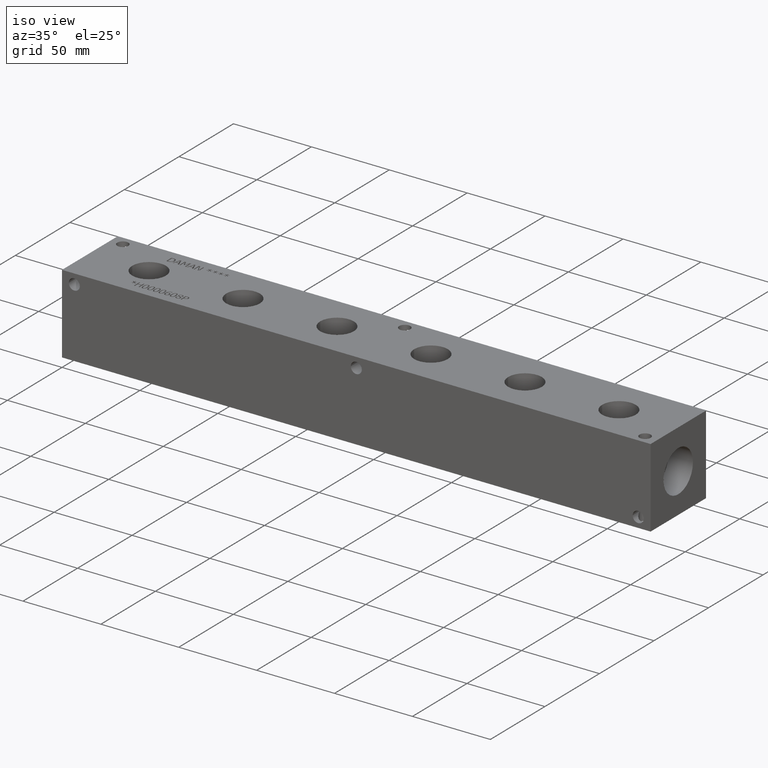
[diagram: clean part render]
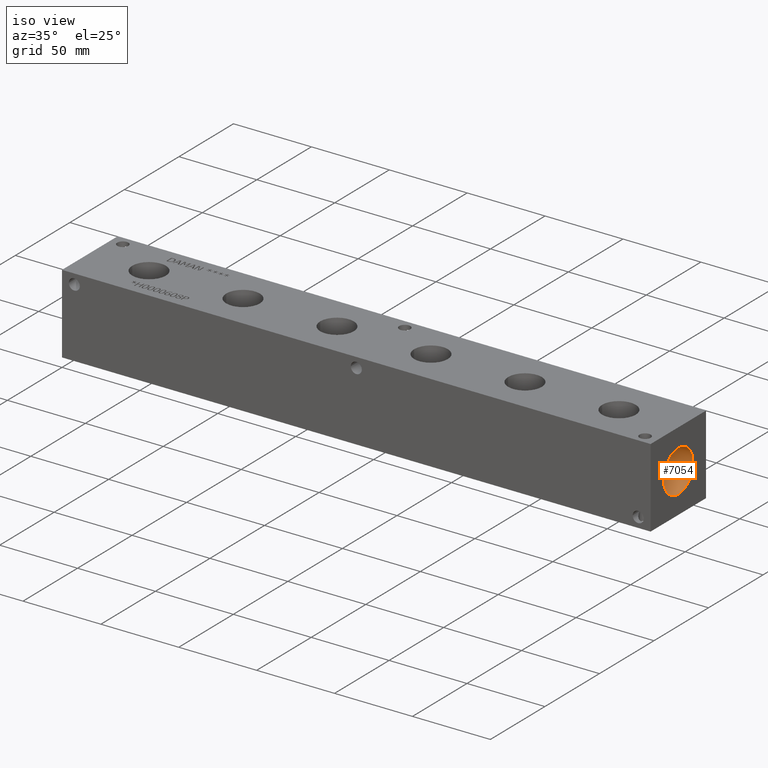
[diagram: same view with one face highlighted and labeled with its STEP entity id]
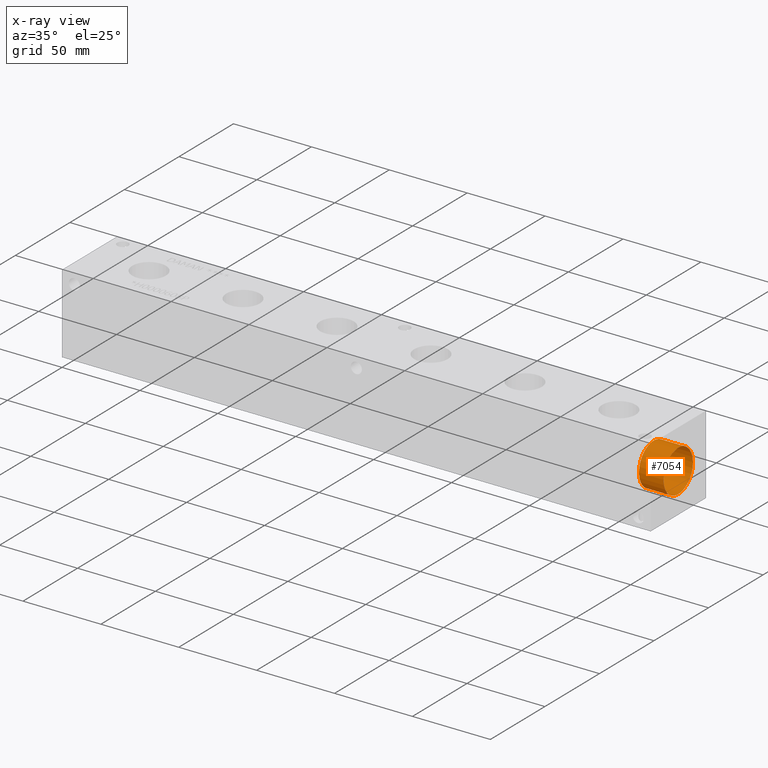
[diagram: x-ray of the same camera — body ghosted, the highlighted face saturated]
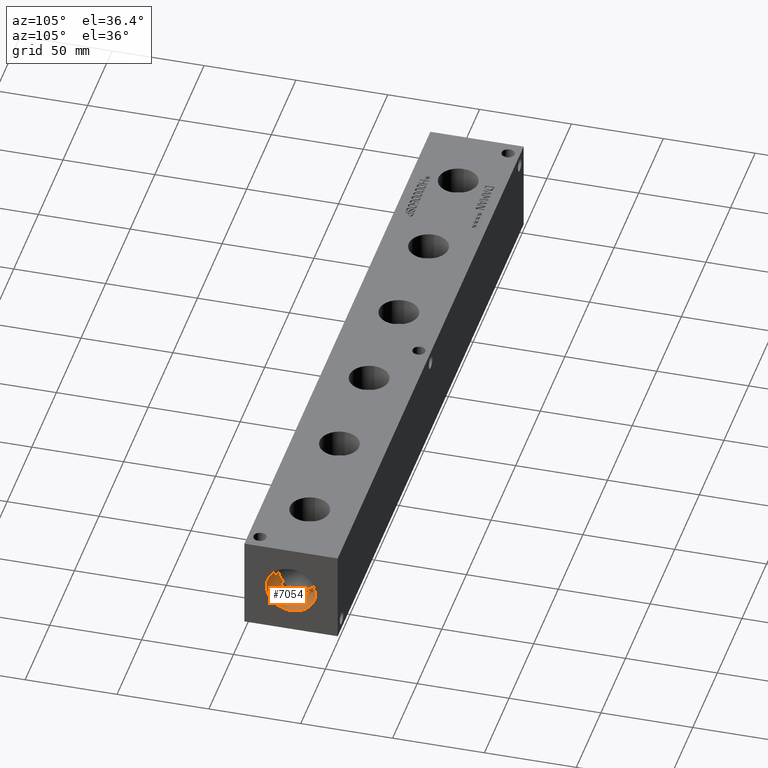
[diagram: same view with one face highlighted and labeled with its STEP entity id]
A machine part, iso view. The second image highlights one B-rep face of the part: STEP entity #7054.
The next image is the same camera in x-ray: the body ghosted, the highlighted face saturated — about 0% of this face is hidden behind the body in this view.
A second angle (auxiliary view) of the same face is appended — the face is thin or edge-on in the first view.
In plain terms, the highlighted cylindrical surface (bore or boss wall) has radius 13.462 mm, axis along (1, 0, 0).
Its self-contained STEP definition (entity closure, byte-faithful):
#58=CYLINDRICAL_SURFACE('',#7391,13.462);
#124=CIRCLE('',#7388,13.462);
#125=CIRCLE('',#7389,13.462);
#127=CIRCLE('',#7392,13.462);
#128=CIRCLE('',#7393,13.462);
#753=FACE_OUTER_BOUND('',#1160,.T.);
#1160=EDGE_LOOP('',(#6225,#6226,#6227,#6228,#6229,#6230));
#1828=LINE('',#12160,#2485);
#2485=VECTOR('',#8686,13.462);
#3363=VERTEX_POINT('',#12149);
#3364=VERTEX_POINT('',#12150);
#3366=VERTEX_POINT('',#12156);
#3367=VERTEX_POINT('',#12157);
#4326=EDGE_CURVE('',#3363,#3364,#124,.T.);
#4327=EDGE_CURVE('',#3364,#3363,#125,.T.);
#4329=EDGE_CURVE('',#3366,#3367,#127,.T.);
#4330=EDGE_CURVE('',#3367,#3366,#128,.T.);
#4331=EDGE_CURVE('',#3367,#3364,#1828,.T.);
#6225=ORIENTED_EDGE('',*,*,#4329,.F.);
#6226=ORIENTED_EDGE('',*,*,#4330,.F.);
#6227=ORIENTED_EDGE('',*,*,#4331,.T.);
#6228=ORIENTED_EDGE('',*,*,#4326,.F.);
#6229=ORIENTED_EDGE('',*,*,#4327,.F.);
#6230=ORIENTED_EDGE('',*,*,#4331,.F.);
#7054=ADVANCED_FACE('',(#753),#58,.F.);
#7388=AXIS2_PLACEMENT_3D('',#12151,#8674,#8675);
#7389=AXIS2_PLACEMENT_3D('',#12152,#8676,#8677);
#7391=AXIS2_PLACEMENT_3D('',#12155,#8680,#8681);
#7392=AXIS2_PLACEMENT_3D('',#12158,#8682,#8683);
#7393=AXIS2_PLACEMENT_3D('',#12159,#8684,#8685);
#8674=DIRECTION('center_axis',(1.,0.,0.));
#8675=DIRECTION('ref_axis',(0.,1.,0.));
#8676=DIRECTION('center_axis',(1.,0.,0.));
#8677=DIRECTION('ref_axis',(0.,1.,0.));
#8680=DIRECTION('center_axis',(1.,0.,0.));
#8681=DIRECTION('ref_axis',(0.,1.,0.));
#8682=DIRECTION('center_axis',(-1.,0.,0.));
#8683=DIRECTION('ref_axis',(0.,1.,0.));
#8684=DIRECTION('center_axis',(-1.,0.,0.));
#8685=DIRECTION('ref_axis',(0.,1.,0.));
#8686=DIRECTION('',(-1.,0.,0.));
#12149=CARTESIAN_POINT('',(361.9754,38.862,25.4));
#12150=CARTESIAN_POINT('',(361.9754,11.938,25.4));
#12151=CARTESIAN_POINT('Origin',(361.9754,25.4,25.4));
#12152=CARTESIAN_POINT('Origin',(361.9754,25.4,25.4));
#12155=CARTESIAN_POINT('Origin',(369.9002,25.4,25.4));
#12156=CARTESIAN_POINT('',(377.825,38.862,25.4));
#12157=CARTESIAN_POINT('',(377.825,11.938,25.4));
#12158=CARTESIAN_POINT('Origin',(377.825,25.4,25.4));
#12159=CARTESIAN_POINT('Origin',(377.825,25.4,25.4));
#12160=CARTESIAN_POINT('',(369.9002,11.938,25.4));